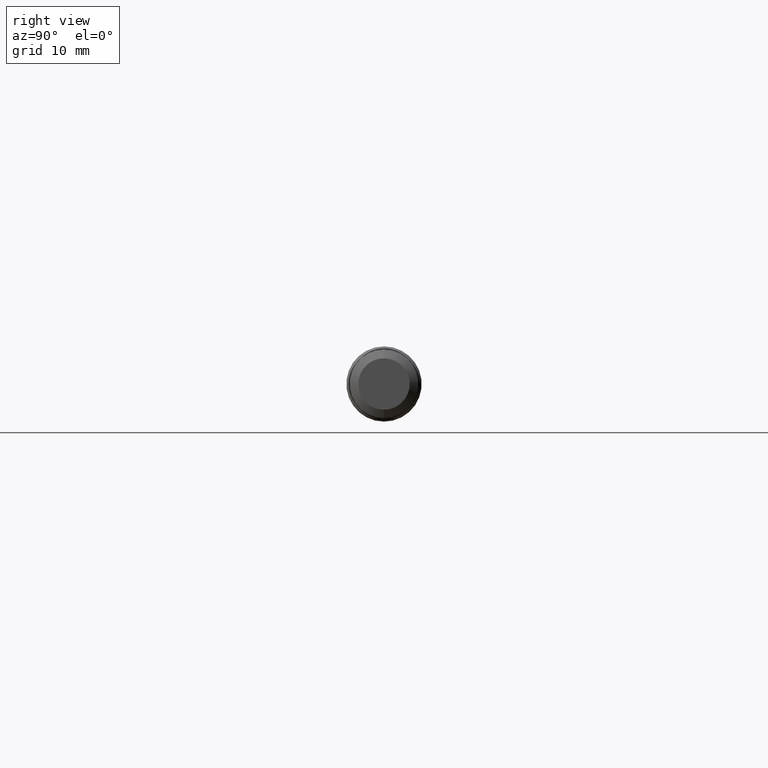
[diagram: clean part render]
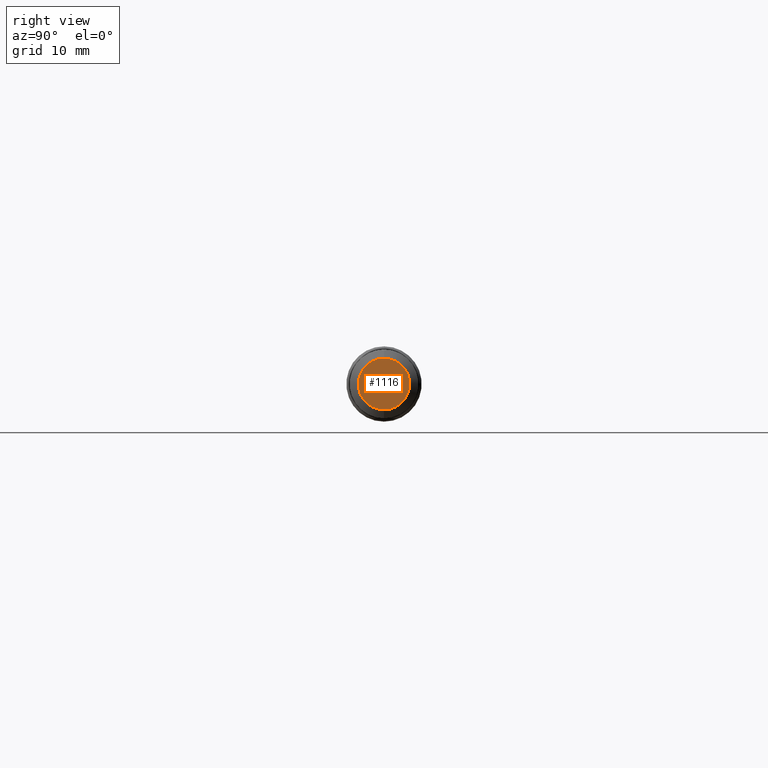
[diagram: same view with one face highlighted and labeled with its STEP entity id]
A machine part, right view. The second image highlights one B-rep face of the part: STEP entity #1116.
In plain terms, the highlighted planar face has unit normal (1, 0, -0).
Its self-contained STEP definition (entity closure, byte-faithful):
#24 = CIRCLE ( 'NONE', #2255, 0.1067119679957789363 ) ;
#45 = VERTEX_POINT ( 'NONE', #1280 ) ;
#267 = CARTESIAN_POINT ( 'NONE',  ( 3.000000000000000444, 0.000000000000000000, 0.000000000000000000 ) ) ;
#583 = DIRECTION ( 'NONE',  ( -0.000000000000000000, 0.000000000000000000, -1.000000000000000000 ) ) ;
#777 = DIRECTION ( 'NONE',  ( 1.000000000000000000, -0.000000000000000000, -0.000000000000000000 ) ) ;
#844 = AXIS2_PLACEMENT_3D ( 'NONE', #2279, #2338, #583 ) ;
#944 = ORIENTED_EDGE ( 'NONE', *, *, #1706, .T. ) ;
#983 = PLANE ( 'NONE',  #844 ) ;
#1116 = ADVANCED_FACE ( 'NONE', ( #2464 ), #983, .T. ) ;
#1280 = CARTESIAN_POINT ( 'NONE',  ( 3.000000000000000444, 1.306844700367454712E-17, -0.1067119679957789363 ) ) ;
#1290 = AXIS2_PLACEMENT_3D ( 'NONE', #267, #1807, #2683 ) ;
#1706 = EDGE_CURVE ( 'NONE', #45, #2694, #24, .T. ) ;
#1791 = ORIENTED_EDGE ( 'NONE', *, *, #2042, .T. ) ;
#1807 = DIRECTION ( 'NONE',  ( 1.000000000000000000, -0.000000000000000000, -0.000000000000000000 ) ) ;
#1938 = CARTESIAN_POINT ( 'NONE',  ( 3.000000000000000444, 0.000000000000000000, 0.1067119679957789363 ) ) ;
#2018 = DIRECTION ( 'NONE',  ( 0.000000000000000000, 0.000000000000000000, -1.000000000000000000 ) ) ;
#2042 = EDGE_CURVE ( 'NONE', #2694, #45, #2518, .T. ) ;
#2255 = AXIS2_PLACEMENT_3D ( 'NONE', #2474, #777, #2018 ) ;
#2279 = CARTESIAN_POINT ( 'NONE',  ( 3.000000000000000444, 0.1424999999999999878, 0.000000000000000000 ) ) ;
#2338 = DIRECTION ( 'NONE',  ( 1.000000000000000000, 0.000000000000000000, -0.000000000000000000 ) ) ;
#2463 = EDGE_LOOP ( 'NONE', ( #1791, #944 ) ) ;
#2464 = FACE_OUTER_BOUND ( 'NONE', #2463, .T. ) ;
#2474 = CARTESIAN_POINT ( 'NONE',  ( 3.000000000000000444, 0.000000000000000000, 0.000000000000000000 ) ) ;
#2518 = CIRCLE ( 'NONE', #1290, 0.1067119679957789363 ) ;
#2683 = DIRECTION ( 'NONE',  ( 0.000000000000000000, 0.000000000000000000, -1.000000000000000000 ) ) ;
#2694 = VERTEX_POINT ( 'NONE', #1938 ) ;